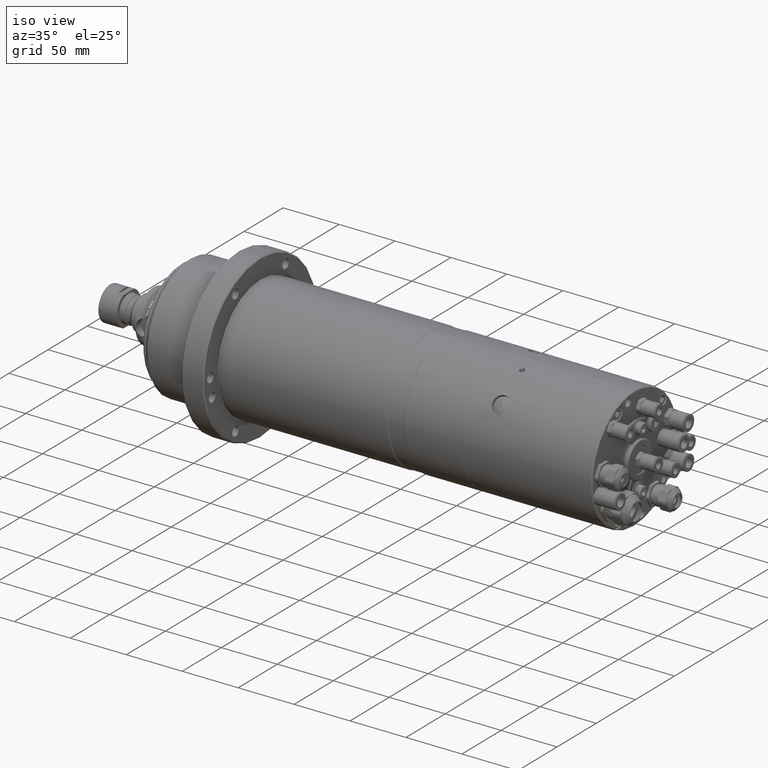
[diagram: clean part render]
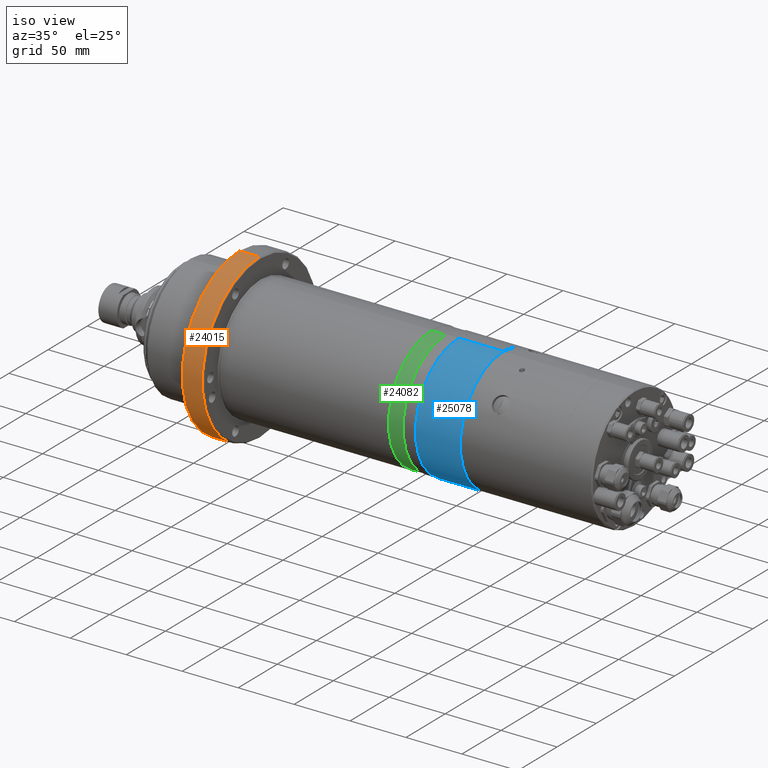
[diagram: same view with three faces highlighted in distinct colors, each labeled with its STEP entity id]
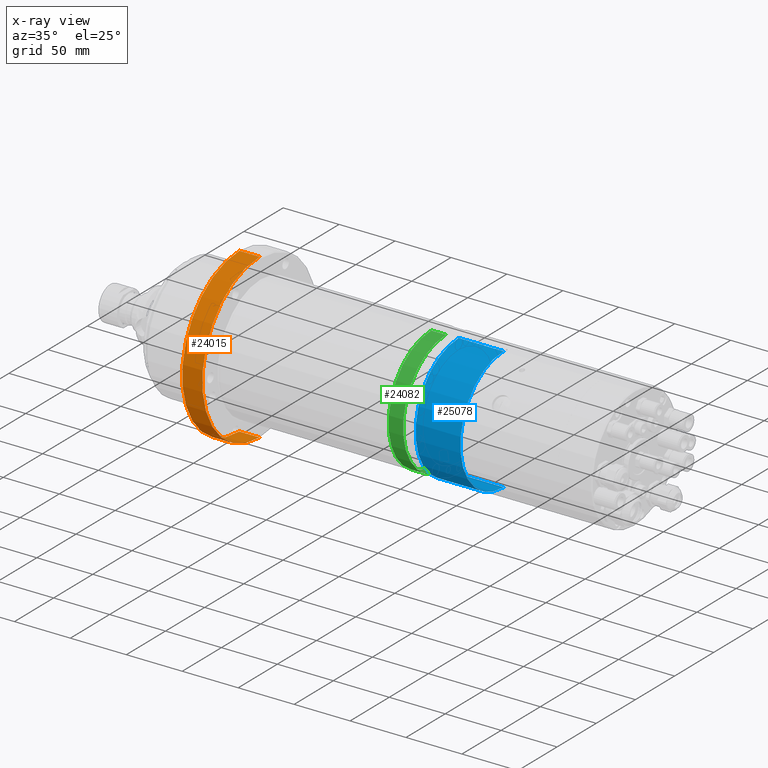
[diagram: x-ray of the same camera — body ghosted, the three highlighted faces saturated]
A machine part, iso view with three faces highlighted in distinct colors.
The next image is the same camera in x-ray (body ghosted, the three faces saturated) — at least one of them is partly hidden behind the body in this view.
Their STEP definitions:

[orange] entity #24015 — the highlighted cylindrical surface (partial cylindrical patch) has radius 73 mm, axis along (-1, -0, -0).
#127 = DIRECTION ( 'NONE',  ( -1.000000000000000000, -0.0000000000000000000, -0.0000000000000000000 ) ) ;
#149 = CARTESIAN_POINT ( 'NONE',  ( 22.49999999999999300, 9.799320692167519100E-015, -73.00000000000000000 ) ) ;
#370 = DIRECTION ( 'NONE',  ( -1.000000000000000000, -0.0000000000000000000, -0.0000000000000000000 ) ) ;
#2390 = DIRECTION ( 'NONE',  ( -1.000000000000000000, -0.0000000000000000000, -0.0000000000000000000 ) ) ;
#2941 = CARTESIAN_POINT ( 'NONE',  ( 55.99999999999993600, 8.593990583918423500E-016, 3.988255730903800700E-016 ) ) ;
#3123 = CARTESIAN_POINT ( 'NONE',  ( 22.49999999999999300, 8.593990583918423500E-016, 3.988255730903800700E-016 ) ) ;
#3275 = DIRECTION ( 'NONE',  ( 0.0000000000000000000, 0.0000000000000000000, 1.000000000000000000 ) ) ;
#4632 = DIRECTION ( 'NONE',  ( 1.000000000000000000, 0.0000000000000000000, 0.0000000000000000000 ) ) ;
#4639 = DIRECTION ( 'NONE',  ( 0.0000000000000000000, 0.0000000000000000000, -1.000000000000000000 ) ) ;
#4854 = EDGE_LOOP ( 'NONE', ( #25958, #25648, #25442, #26312 ) ) ;
#8901 = VERTEX_POINT ( 'NONE', #13019 ) ;
#8905 = VERTEX_POINT ( 'NONE', #13028 ) ;
#9053 = VERTEX_POINT ( 'NONE', #12409 ) ;
#9084 = VERTEX_POINT ( 'NONE', #12443 ) ;
#12011 = CIRCLE ( 'NONE', #18845, 73.00000000000000000 ) ;
#12117 = CIRCLE ( 'NONE', #18942, 73.00000000000000000 ) ;
#12409 = CARTESIAN_POINT ( 'NONE',  ( 55.99999999999993600, 8.593990583918423500E-016, 73.00000000000000000 ) ) ;
#12443 = CARTESIAN_POINT ( 'NONE',  ( 74.00000000000001400, 9.799320692167519100E-015, -73.00000000000000000 ) ) ;
#13019 = CARTESIAN_POINT ( 'NONE',  ( 74.00000000000001400, 8.593990583918423500E-016, 73.00000000000000000 ) ) ;
#13028 = CARTESIAN_POINT ( 'NONE',  ( 55.99999999999993600, 9.799320692167519100E-015, -73.00000000000000000 ) ) ;
#13201 = AXIS2_PLACEMENT_3D ( 'NONE', #3123, #2390, #3275 ) ;
#14551 = VECTOR ( 'NONE', #370, 1000.000000000000000 ) ;
#14557 = LINE ( 'NONE', #30592, #14602 ) ;
#14602 = VECTOR ( 'NONE', #127, 1000.000000000000000 ) ;
#14665 = LINE ( 'NONE', #149, #14551 ) ;
#18845 = AXIS2_PLACEMENT_3D ( 'NONE', #2941, #4632, #4639 ) ;
#18942 = AXIS2_PLACEMENT_3D ( 'NONE', #21370, #21367, #21361 ) ;
#21361 = DIRECTION ( 'NONE',  ( 0.0000000000000000000, 0.0000000000000000000, 1.000000000000000000 ) ) ;
#21367 = DIRECTION ( 'NONE',  ( -1.000000000000000000, -0.0000000000000000000, -0.0000000000000000000 ) ) ;
#21370 = CARTESIAN_POINT ( 'NONE',  ( 74.00000000000001400, 8.593990583918423500E-016, 3.988255730903800700E-016 ) ) ;
#23451 = CYLINDRICAL_SURFACE ( 'NONE', #13201, 73.00000000000000000 ) ;
#23459 = FACE_OUTER_BOUND ( 'NONE', #4854, .T. ) ;
#24015 = ADVANCED_FACE ( 'NONE', ( #23459 ), #23451, .T. ) ;
#25442 = ORIENTED_EDGE ( 'NONE', *, *, #28426, .T. ) ;
#25648 = ORIENTED_EDGE ( 'NONE', *, *, #29031, .T. ) ;
#25958 = ORIENTED_EDGE ( 'NONE', *, *, #28428, .F. ) ;
#26312 = ORIENTED_EDGE ( 'NONE', *, *, #29174, .T. ) ;
#28426 = EDGE_CURVE ( 'NONE', #8901, #9053, #14557, .T. ) ;
#28428 = EDGE_CURVE ( 'NONE', #9084, #8905, #14665, .T. ) ;
#29031 = EDGE_CURVE ( 'NONE', #9084, #8901, #12117, .T. ) ;
#29174 = EDGE_CURVE ( 'NONE', #9053, #8905, #12011, .T. ) ;
#30592 = CARTESIAN_POINT ( 'NONE',  ( 22.49999999999999300, 8.593990583918423500E-016, 73.00000000000000000 ) ) ;

[blue] entity #25078 — the highlighted cylindrical surface (partial cylindrical patch) has radius 54.975 mm, axis along (-1, -0, -0).
#1522 = EDGE_LOOP ( 'NONE', ( #16333, #16231, #16469, #16306 ) ) ;
#3497 = EDGE_CURVE ( 'NONE', #6040, #5995, #10388, .T. ) ;
#3500 = EDGE_CURVE ( 'NONE', #5219, #5996, #10598, .T. ) ;
#3865 = EDGE_CURVE ( 'NONE', #5996, #5995, #10861, .T. ) ;
#4148 = EDGE_CURVE ( 'NONE', #5219, #6040, #6463, .T. ) ;
#5219 = VERTEX_POINT ( 'NONE', #27461 ) ;
#5995 = VERTEX_POINT ( 'NONE', #27707 ) ;
#5996 = VERTEX_POINT ( 'NONE', #27733 ) ;
#6040 = VERTEX_POINT ( 'NONE', #27336 ) ;
#6463 = CIRCLE ( 'NONE', #15383, 54.97500000000000100 ) ;
#6966 = AXIS2_PLACEMENT_3D ( 'NONE', #9750, #9497, #9735 ) ;
#9497 = DIRECTION ( 'NONE',  ( -1.000000000000000000, -0.0000000000000000000, -0.0000000000000000000 ) ) ;
#9735 = DIRECTION ( 'NONE',  ( 0.0000000000000000000, 0.0000000000000000000, 1.000000000000000000 ) ) ;
#9750 = CARTESIAN_POINT ( 'NONE',  ( 221.0168287001873200, 0.0000000000000000000, 0.0000000000000000000 ) ) ;
#10227 = VECTOR ( 'NONE', #29804, 1000.000000000000000 ) ;
#10388 = LINE ( 'NONE', #30333, #10578 ) ;
#10578 = VECTOR ( 'NONE', #30193, 1000.000000000000000 ) ;
#10598 = LINE ( 'NONE', #30146, #10227 ) ;
#10861 = CIRCLE ( 'NONE', #15485, 54.97500000000000100 ) ;
#14389 = FACE_OUTER_BOUND ( 'NONE', #1522, .T. ) ;
#14402 = CYLINDRICAL_SURFACE ( 'NONE', #6966, 54.97500000000000100 ) ;
#15383 = AXIS2_PLACEMENT_3D ( 'NONE', #17572, #17586, #17573 ) ;
#15485 = AXIS2_PLACEMENT_3D ( 'NONE', #26745, #26717, #26715 ) ;
#16231 = ORIENTED_EDGE ( 'NONE', *, *, #4148, .T. ) ;
#16306 = ORIENTED_EDGE ( 'NONE', *, *, #3865, .F. ) ;
#16333 = ORIENTED_EDGE ( 'NONE', *, *, #3500, .F. ) ;
#16469 = ORIENTED_EDGE ( 'NONE', *, *, #3497, .T. ) ;
#17572 = CARTESIAN_POINT ( 'NONE',  ( 292.0000000000000000, 0.0000000000000000000, 0.0000000000000000000 ) ) ;
#17573 = DIRECTION ( 'NONE',  ( 0.0000000000000000000, 0.0000000000000000000, 1.000000000000000000 ) ) ;
#17586 = DIRECTION ( 'NONE',  ( -1.000000000000000000, -0.0000000000000000000, -0.0000000000000000000 ) ) ;
#25078 = ADVANCED_FACE ( 'NONE', ( #14389 ), #14402, .T. ) ;
#26715 = DIRECTION ( 'NONE',  ( 0.0000000000000000000, 0.0000000000000000000, 1.000000000000000000 ) ) ;
#26717 = DIRECTION ( 'NONE',  ( -1.000000000000000000, -0.0000000000000000000, -0.0000000000000000000 ) ) ;
#26745 = CARTESIAN_POINT ( 'NONE',  ( 252.0000000000000000, 0.0000000000000000000, 0.0000000000000000000 ) ) ;
#27336 = CARTESIAN_POINT ( 'NONE',  ( 292.0000000000000000, 0.0000000000000000000, 54.97500000000000100 ) ) ;
#27461 = CARTESIAN_POINT ( 'NONE',  ( 292.0000000000000000, 6.732495778312574900E-015, -54.97500000000000100 ) ) ;
#27707 = CARTESIAN_POINT ( 'NONE',  ( 252.0000000000000000, 0.0000000000000000000, 54.97500000000000100 ) ) ;
#27733 = CARTESIAN_POINT ( 'NONE',  ( 252.0000000000000000, 6.732495778312574900E-015, -54.97500000000000100 ) ) ;
#29804 = DIRECTION ( 'NONE',  ( -1.000000000000000000, -0.0000000000000000000, -0.0000000000000000000 ) ) ;
#30146 = CARTESIAN_POINT ( 'NONE',  ( 221.0168287001873200, 6.732495778312574900E-015, -54.97500000000000100 ) ) ;
#30193 = DIRECTION ( 'NONE',  ( -1.000000000000000000, -0.0000000000000000000, -0.0000000000000000000 ) ) ;
#30333 = CARTESIAN_POINT ( 'NONE',  ( 221.0168287001873200, 0.0000000000000000000, 54.97500000000000100 ) ) ;

[green] entity #24082 — the highlighted cylindrical surface (partial cylindrical patch) has radius 54.5 mm, axis along (-1, -0, -0).
#43 = DIRECTION ( 'NONE',  ( -1.000000000000000000, -0.0000000000000000000, -0.0000000000000000000 ) ) ;
#72 = CARTESIAN_POINT ( 'NONE',  ( 22.49999999999999300, 8.593990583918423500E-016, 54.50000000000000000 ) ) ;
#249 = CARTESIAN_POINT ( 'NONE',  ( 22.49999999999999300, 7.533724113744915700E-015, -54.50000000000000000 ) ) ;
#401 = DIRECTION ( 'NONE',  ( -1.000000000000000000, -0.0000000000000000000, -0.0000000000000000000 ) ) ;
#2433 = CARTESIAN_POINT ( 'NONE',  ( 22.49999999999999300, 8.593990583918423500E-016, 3.988255730903800700E-016 ) ) ;
#2785 = DIRECTION ( 'NONE',  ( -1.000000000000000000, -0.0000000000000000000, -0.0000000000000000000 ) ) ;
#3092 = DIRECTION ( 'NONE',  ( 0.0000000000000000000, 0.0000000000000000000, 1.000000000000000000 ) ) ;
#3794 = DIRECTION ( 'NONE',  ( -1.000000000000000000, -0.0000000000000000000, -0.0000000000000000000 ) ) ;
#3802 = CARTESIAN_POINT ( 'NONE',  ( 240.5000000000000000, 8.593990583918423500E-016, 3.988255730903800700E-016 ) ) ;
#3820 = DIRECTION ( 'NONE',  ( 0.0000000000000000000, 0.0000000000000000000, 1.000000000000000000 ) ) ;
#4009 = DIRECTION ( 'NONE',  ( -1.000000000000000000, -0.0000000000000000000, -0.0000000000000000000 ) ) ;
#4305 = CARTESIAN_POINT ( 'NONE',  ( 227.4999999999999700, 8.593990583918423500E-016, 3.988255730903800700E-016 ) ) ;
#4567 = DIRECTION ( 'NONE',  ( 0.0000000000000000000, 0.0000000000000000000, 1.000000000000000000 ) ) ;
#5116 = EDGE_LOOP ( 'NONE', ( #25289, #25447, #25343, #25718 ) ) ;
#5960 = VERTEX_POINT ( 'NONE', #27399 ) ;
#8552 = VERTEX_POINT ( 'NONE', #28169 ) ;
#8638 = VERTEX_POINT ( 'NONE', #27322 ) ;
#8676 = VERTEX_POINT ( 'NONE', #27517 ) ;
#11989 = CIRCLE ( 'NONE', #18952, 54.50000000000000000 ) ;
#12274 = CIRCLE ( 'NONE', #18876, 54.50000000000000000 ) ;
#13402 = AXIS2_PLACEMENT_3D ( 'NONE', #2433, #2785, #3092 ) ;
#14742 = VECTOR ( 'NONE', #43, 1000.000000000000000 ) ;
#14745 = VECTOR ( 'NONE', #401, 1000.000000000000000 ) ;
#14791 = LINE ( 'NONE', #72, #14742 ) ;
#14800 = LINE ( 'NONE', #249, #14745 ) ;
#18876 = AXIS2_PLACEMENT_3D ( 'NONE', #4305, #4009, #4567 ) ;
#18952 = AXIS2_PLACEMENT_3D ( 'NONE', #3802, #3794, #3820 ) ;
#20842 = FACE_OUTER_BOUND ( 'NONE', #5116, .T. ) ;
#20895 = CYLINDRICAL_SURFACE ( 'NONE', #13402, 54.50000000000000000 ) ;
#24082 = ADVANCED_FACE ( 'NONE', ( #20842 ), #20895, .T. ) ;
#25289 = ORIENTED_EDGE ( 'NONE', *, *, #28472, .F. ) ;
#25343 = ORIENTED_EDGE ( 'NONE', *, *, #28476, .T. ) ;
#25447 = ORIENTED_EDGE ( 'NONE', *, *, #29186, .T. ) ;
#25718 = ORIENTED_EDGE ( 'NONE', *, *, #29084, .F. ) ;
#27322 = CARTESIAN_POINT ( 'NONE',  ( 240.5000000000000000, 7.564340283723599500E-015, 54.50000000000000000 ) ) ;
#27399 = CARTESIAN_POINT ( 'NONE',  ( 227.4999999999999700, 7.533724113744915700E-015, -54.50000000000000000 ) ) ;
#27517 = CARTESIAN_POINT ( 'NONE',  ( 240.5000000000000000, 8.593990583918423500E-016, -54.50000000000000000 ) ) ;
#28169 = CARTESIAN_POINT ( 'NONE',  ( 227.4999999999999700, 8.593990583918423500E-016, 54.50000000000000000 ) ) ;
#28472 = EDGE_CURVE ( 'NONE', #8676, #5960, #14800, .T. ) ;
#28476 = EDGE_CURVE ( 'NONE', #8638, #8552, #14791, .T. ) ;
#29084 = EDGE_CURVE ( 'NONE', #5960, #8552, #12274, .T. ) ;
#29186 = EDGE_CURVE ( 'NONE', #8676, #8638, #11989, .T. ) ;